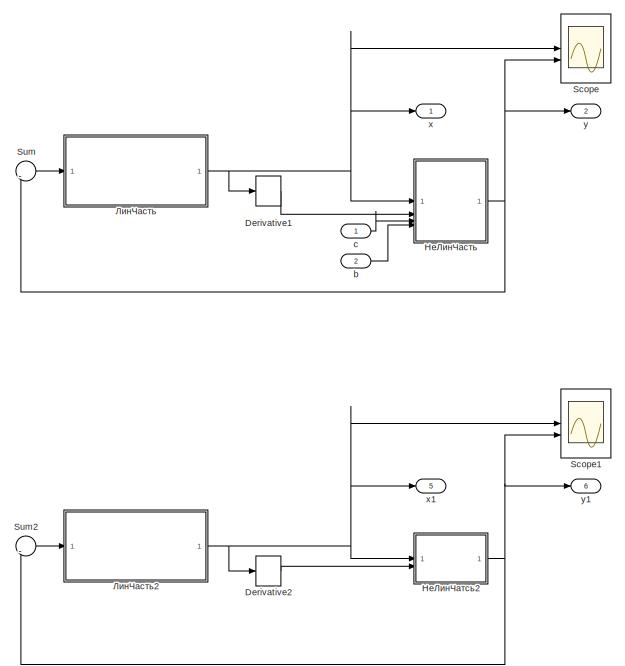
[diagram: root canvas - part 1/2, left side, full height]
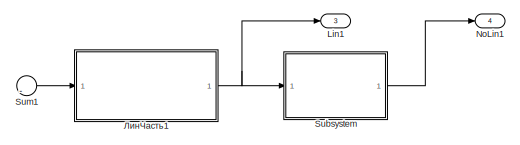
[diagram: root canvas - part 2/2, middle right region]
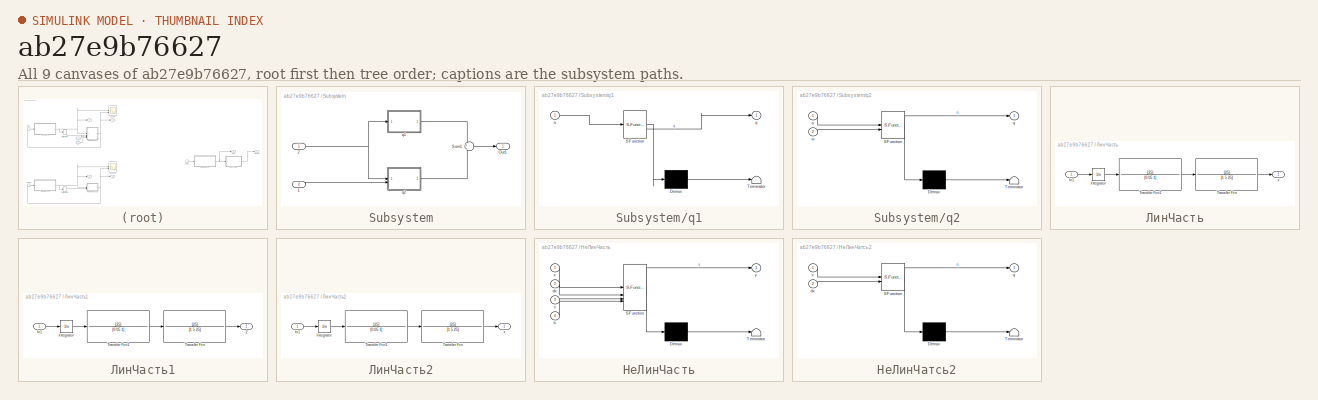
[diagram: thumbnail index - all 9 canvases of the model, root first then tree order]
MODEL slx_ab27e9b76627
KIND model
CONFIG AbsTol = auto
CONFIG EnableMultiTasking = off
CONFIG FixedStep = auto
CONFIG MaxStep = auto
CONFIG MinStep = auto
CONFIG RelTol = 1e-3
CONFIG SampleTimeConstraint = Unconstrained
CONFIG SolverName = VariableStepAuto
CONFIG StartTime = 0.0
CONFIG StopTime = 10.0
BLOCK [Derivative] Derivative1
BLOCK [Derivative] Derivative2
BLOCK [Outport] Lin1
  NameLocation = right
  Port = 3
BLOCK [Outport] NoLin1
  NameLocation = right
  Port = 4
BLOCK [Scope] Scope
  Floating = off
  NumInputPorts = 2
  ScopeSpecificationString = Simulink.scopes.TimeScopeBlockCfg('CurrentConfiguration', extmgr.ConfigurationSet(extmgr.Configuration('Core','General UI',true),extmgr.Configuration('Core','Source UI',true),extmgr.Configuration('Sources','WiredSimulink',true),extmgr.Configuration('Visuals','Time Domain',true),extmgr.Configuration('Tools','Plot Navigation',true),extmgr.Configuration('Tools','Measurements',true,'Version','2023a'))...<+61ch>
BLOCK [Scope] Scope1
  Floating = off
  NumInputPorts = 2
  ScopeSpecificationString = Simulink.scopes.TimeScopeBlockCfg('CurrentConfiguration', extmgr.ConfigurationSet(extmgr.Configuration('Core','General UI',true),extmgr.Configuration('Core','Source UI',true),extmgr.Configuration('Sources','WiredSimulink',true,'DataLoggingVariableName','ScopeData1'),extmgr.Configuration('Visuals','Time Domain',true),extmgr.Configuration('Tools','Plot Navigation',true),extmgr.Configuration('Tools',...<+100ch>
BLOCK [SubSystem] Subsystem
BLOCK [Inport] Subsystem/1
  Port = 2
BLOCK [Inport] Subsystem/2
BLOCK [Outport] Subsystem/Out1
BLOCK [Sum] Subsystem/Sum1
  Inputs = +|+
BLOCK [SubSystem] Subsystem/q1
  ErrorFcn = Stateflow.Translate.translate
  LibrarySourceBlock = simulink/User-Defined\nFunctions/MATLAB Function
  PermitHierarchicalResolution = ExplicitOnly
  SFBlockType = MATLAB Function
  TreatAsAtomicUnit = on
BLOCK [Demux] Subsystem/q1/ Demux 
  Outputs = 1
BLOCK [S-Function] Subsystem/q1/ SFunction 
  EnableBusSupport = off
  FunctionName = sf_sfun
  PortCounts = [1 2]
  SFcnIsStateOwnerBlock = off
  SFunctionDeploymentMode = off
  Tag = Stateflow S-Function 2
BLOCK [Terminator] Subsystem/q1/ Terminator 
BLOCK [Inport] Subsystem/q1/a
BLOCK [Outport] Subsystem/q1/q
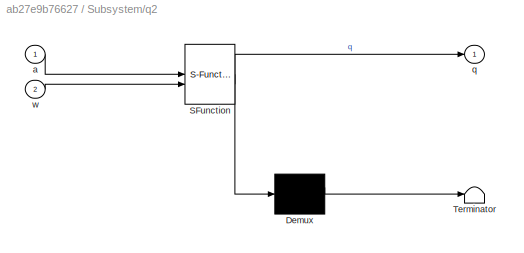
BLOCK [SubSystem] Subsystem/q2
  ErrorFcn = Stateflow.Translate.translate
  LibrarySourceBlock = simulink/User-Defined\nFunctions/MATLAB Function
  PermitHierarchicalResolution = ExplicitOnly
  SFBlockType = MATLAB Function
  TreatAsAtomicUnit = on
BLOCK [Demux] Subsystem/q2/ Demux 
  Outputs = 1
BLOCK [S-Function] Subsystem/q2/ SFunction 
  EnableBusSupport = off
  FunctionName = sf_sfun
  PortCounts = [2 2]
  SFcnIsStateOwnerBlock = off
  SFunctionDeploymentMode = off
  Tag = Stateflow S-Function 3
BLOCK [Terminator] Subsystem/q2/ Terminator 
BLOCK [Inport] Subsystem/q2/a
BLOCK [Outport] Subsystem/q2/q
BLOCK [Inport] Subsystem/q2/w
  Port = 2
BLOCK [Sum] Sum
  Inputs = ||-
BLOCK [Sum] Sum1
  Inputs = ||-
BLOCK [Sum] Sum2
  Inputs = ||-
BLOCK [Inport] b
  NameLocation = left
  Port = 2
BLOCK [Inport] c
  NameLocation = left
BLOCK [Outport] x
BLOCK [Outport] x1
  Port = 5
BLOCK [Outport] y
  Port = 2
BLOCK [Outport] y1
  Port = 6
BLOCK [SubSystem] ЛинЧасть
BLOCK [Inport] ЛинЧасть/In1
BLOCK [Integrator] ЛинЧасть/Integrator
BLOCK [TransferFcn] ЛинЧасть/Transfer Fcn
  Denominator = [1 5 25]
  Numerator = [25]
BLOCK [TransferFcn] ЛинЧасть/Transfer Fcn1
  Denominator = [0.05 1]
  Numerator = [25]
BLOCK [Outport] ЛинЧасть/x
BLOCK [SubSystem] ЛинЧасть1
BLOCK [Outport] ЛинЧасть1/2
BLOCK [Inport] ЛинЧасть1/In1
BLOCK [Integrator] ЛинЧасть1/Integrator
BLOCK [TransferFcn] ЛинЧасть1/Transfer Fcn
  Denominator = [1 5 25]
  Numerator = [25]
BLOCK [TransferFcn] ЛинЧасть1/Transfer Fcn1
  Denominator = [0.05 1]
  Numerator = [25]
BLOCK [SubSystem] ЛинЧасть2
BLOCK [Inport] ЛинЧасть2/In1
BLOCK [Integrator] ЛинЧасть2/Integrator
BLOCK [TransferFcn] ЛинЧасть2/Transfer Fcn
  Denominator = [1 5 25]
  Numerator = [25]
BLOCK [TransferFcn] ЛинЧасть2/Transfer Fcn1
  Denominator = [0.05 1]
  Numerator = [25]
BLOCK [Outport] ЛинЧасть2/x
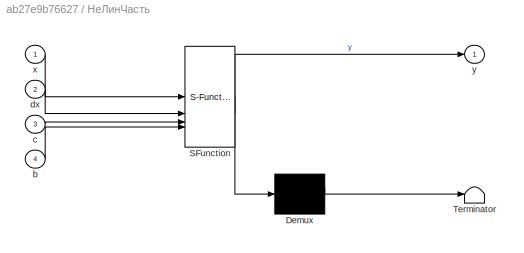
BLOCK [SubSystem] НеЛинЧасть
  ErrorFcn = Stateflow.Translate.translate
  LibrarySourceBlock = simulink/User-Defined\nFunctions/MATLAB Function
  PermitHierarchicalResolution = ExplicitOnly
  SFBlockType = MATLAB Function
  TreatAsAtomicUnit = on
BLOCK [Demux] НеЛинЧасть/ Demux 
  Outputs = 1
BLOCK [S-Function] НеЛинЧасть/ SFunction 
  EnableBusSupport = off
  FunctionName = sf_sfun
  PortCounts = [4 2]
  SFcnIsStateOwnerBlock = off
  SFunctionDeploymentMode = off
  Tag = Stateflow S-Function 1
BLOCK [Terminator] НеЛинЧасть/ Terminator 
BLOCK [Inport] НеЛинЧасть/b
  Port = 4
BLOCK [Inport] НеЛинЧасть/c
  Port = 3
BLOCK [Inport] НеЛинЧасть/dx
  Port = 2
BLOCK [Inport] НеЛинЧасть/x
BLOCK [Outport] НеЛинЧасть/y
BLOCK [SubSystem] НеЛинЧатсь2
  ErrorFcn = Stateflow.Translate.translate
  LibrarySourceBlock = simulink/User-Defined\nFunctions/MATLAB Function
  PermitHierarchicalResolution = ExplicitOnly
  SFBlockType = MATLAB Function
  TreatAsAtomicUnit = on
BLOCK [Demux] НеЛинЧатсь2/ Demux 
  Outputs = 1
BLOCK [S-Function] НеЛинЧатсь2/ SFunction 
  EnableBusSupport = off
  FunctionName = sf_sfun
  PortCounts = [2 2]
  SFcnIsStateOwnerBlock = off
  SFunctionDeploymentMode = off
  Tag = Stateflow S-Function 4
BLOCK [Terminator] НеЛинЧатсь2/ Terminator 
BLOCK [Inport] НеЛинЧатсь2/dx
  Port = 2
BLOCK [Outport] НеЛинЧатсь2/q
BLOCK [Inport] НеЛинЧатсь2/x
LINE Derivative1:1 -> НеЛинЧасть:2
LINE Derivative2:1 -> НеЛинЧатсь2:2
LINE Subsystem/1:1 -> Subsystem/q2:2
NET Subsystem/2:1 -> Subsystem/q1:1, Subsystem/q2:1
LINE Subsystem/Sum1:1 -> Subsystem/Out1:1
LINE Subsystem/q1:1 -> Subsystem/Sum1:1
LINE Subsystem/q2:1 -> Subsystem/Sum1:2
LINE Subsystem:1 -> NoLin1:1
LINE Sum1:1 -> ЛинЧасть1:1
LINE Sum2:1 -> ЛинЧасть2:1
LINE Sum:1 -> ЛинЧасть:1
LINE b:1 -> НеЛинЧасть:4
LINE c:1 -> НеЛинЧасть:3
LINE ЛинЧасть/In1:1 -> ЛинЧасть/Integrator:1
LINE ЛинЧасть/Integrator:1 -> ЛинЧасть/Transfer Fcn1:1
LINE ЛинЧасть/Transfer Fcn1:1 -> ЛинЧасть/Transfer Fcn:1
LINE ЛинЧасть/Transfer Fcn:1 -> ЛинЧасть/x:1
LINE ЛинЧасть1/In1:1 -> ЛинЧасть1/Integrator:1
LINE ЛинЧасть1/Integrator:1 -> ЛинЧасть1/Transfer Fcn1:1
LINE ЛинЧасть1/Transfer Fcn1:1 -> ЛинЧасть1/Transfer Fcn:1
LINE ЛинЧасть1/Transfer Fcn:1 -> ЛинЧасть1/2:1
NET ЛинЧасть1:1 -> Lin1:1, Subsystem:1
LINE ЛинЧасть2/In1:1 -> ЛинЧасть2/Integrator:1
LINE ЛинЧасть2/Integrator:1 -> ЛинЧасть2/Transfer Fcn1:1
LINE ЛинЧасть2/Transfer Fcn1:1 -> ЛинЧасть2/Transfer Fcn:1
LINE ЛинЧасть2/Transfer Fcn:1 -> ЛинЧасть2/x:1
NET ЛинЧасть2:1 -> Derivative2:1, Scope1:1, x1:1, НеЛинЧатсь2:1
NET ЛинЧасть:1 -> Derivative1:1, Scope:1, x:1, НеЛинЧасть:1
NET НеЛинЧасть:1 -> Scope:2, Sum:1, y:1
NET НеЛинЧатсь2:1 -> Scope1:2, Sum2:1, y1:1
note: NET lines group one-source signal fan-out (src -> all destinations, sorted); 1:1 wires keep LINE
CHART НеЛинЧасть states=1 transitions=1
  STATE_LABEL 'eML_blk_kernel()'
  STATE_LABEL 'SCRIPT:\nfunction y  = rele(x, dx, c, b)\n    \n    if ode45(x)\n        y = c*sign(x-b); \n    else\n        y = c*sign(x+b);\n    end\n\nend'
CHART Subsystem/q1 states=1 transitions=1
  STATE_LABEL 'eML_blk_kernel()'
  STATE_LABEL 'SCRIPT:\nfunction q  = q1(a)\n\n    c = 1;\n    b = 1;\n\n    q = sqrt(1 - (b^2 / a^2)) * (4*c)/(pi*a);\n\nend'
CHART Subsystem/q2 states=1 transitions=1
  STATE_LABEL 'eML_blk_kernel()'
  STATE_LABEL 'SCRIPT:\nfunction q  = q2(a, w)\n\n    c = 1;\n    b = 1;\n\n    q = -(4*c*b)/(w*pi*a^2);\n\nend'
CHART НеЛинЧатсь2 states=1 transitions=1
  STATE_LABEL 'eML_blk_kernel()'
  STATE_LABEL 'SCRIPT:\nfunction q  = W3(x, dx)\n\n    c = 1;\n    b = 1;\n\n    q = sqrt(1 - (b^2 / a^2)) * (4*c)/(pi*a);\n\nend'
CHART  states=0 transitions=0
CHART  states=0 transitions=0
CHART  states=0 transitions=0
CHART  states=0 transitions=0
